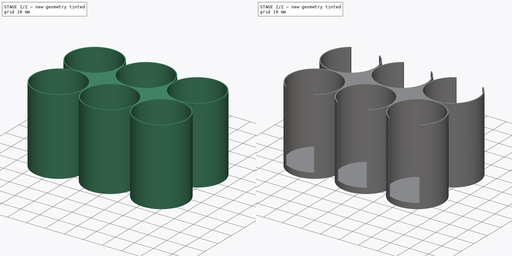
[diagram: build sequence overview — one tinted view per stage of 2, left to right]
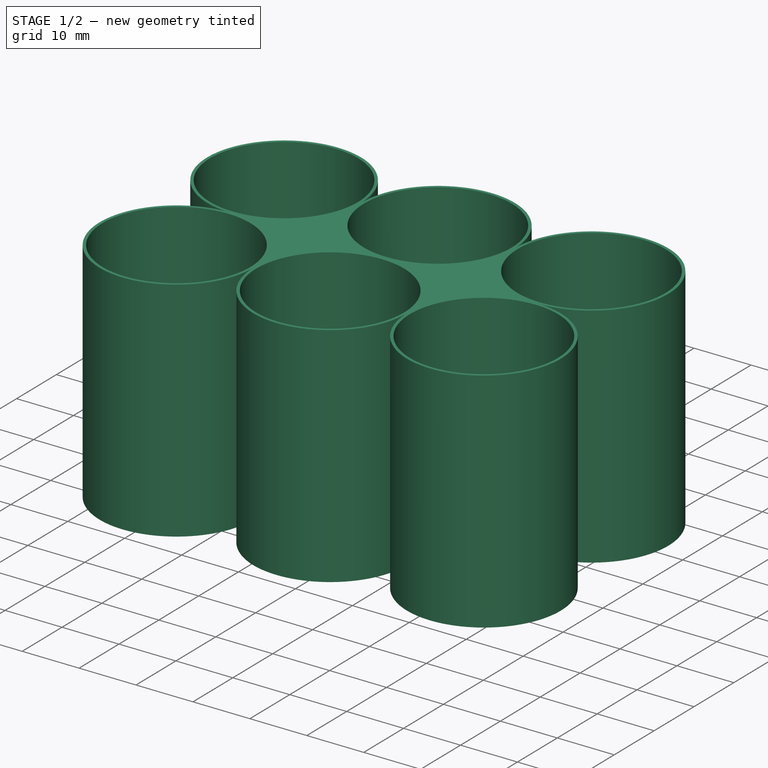
[diagram: stage 1 of 2 — iso view after this stage's code; geometry added in this stage tinted green]
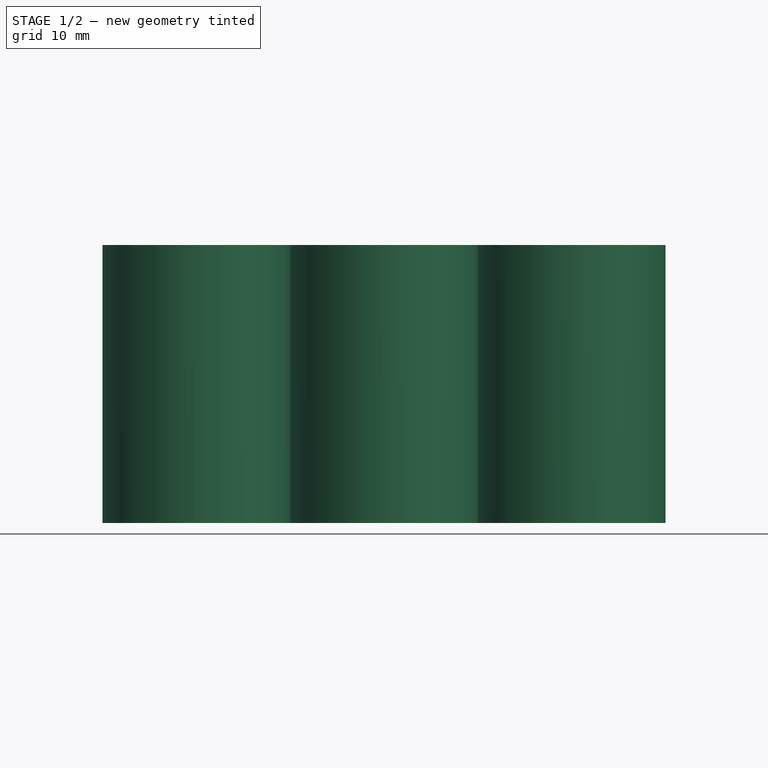
[diagram: stage 1 of 2 — front view after this stage's code; geometry added in this stage tinted green]
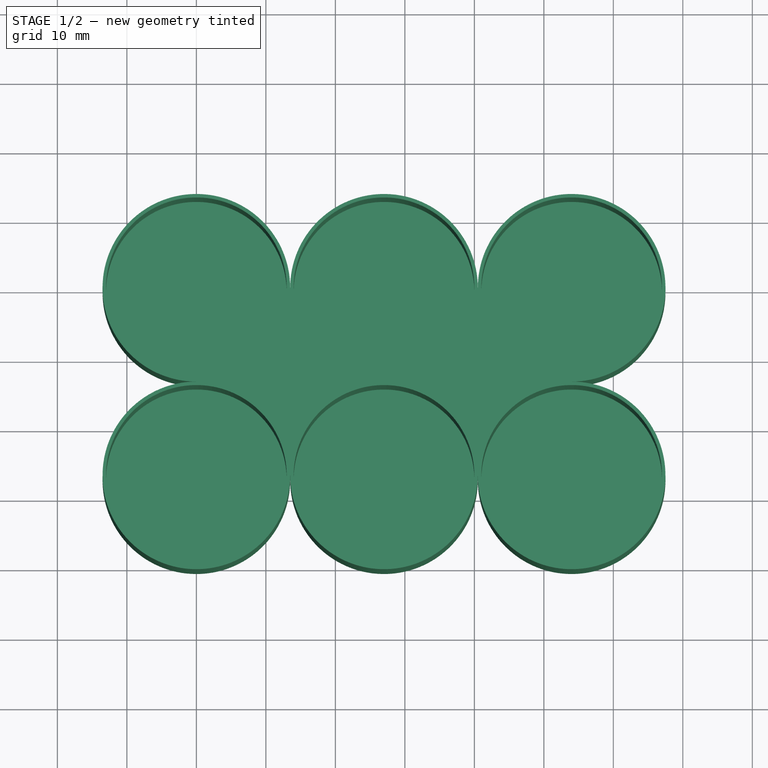
[diagram: stage 1 of 2 — top view after this stage's code; geometry added in this stage tinted green]
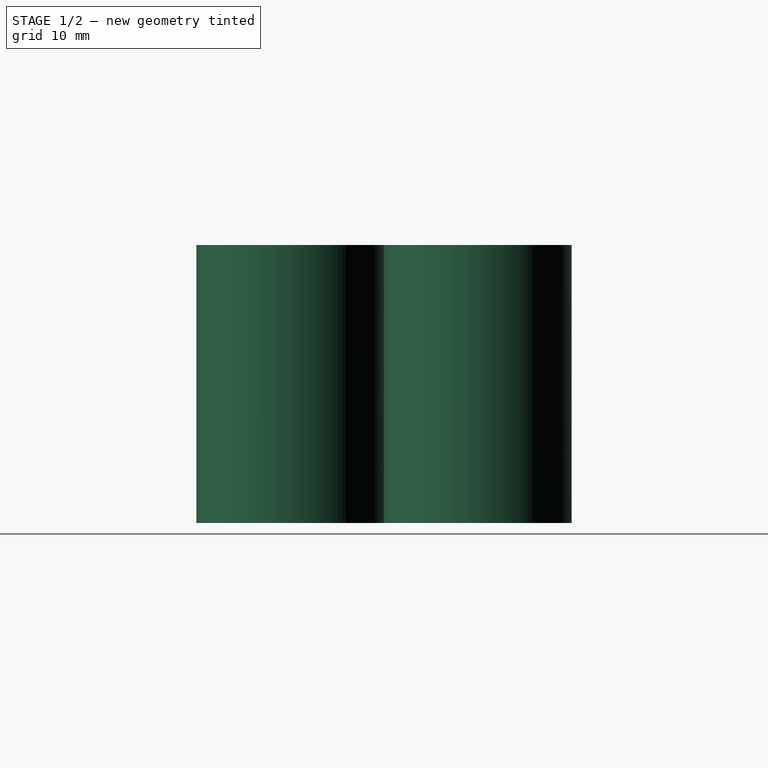
[diagram: stage 1 of 2 — right view after this stage's code; geometry added in this stage tinted green]
FCSTD DOCUMENT  (FreeCAD 0.20R29177 (Git))
Label: dropper_paint_v2
License: All rights reserved
LicenseURL: http://en.wikipedia.org/wiki/All_rights_reserved
objects: Sketcher::SketchObject×4, PartDesign::Pocket×3, PartDesign::Pad×1, PartDesign::Body×1
note: 13 computed .brp shape members not serialized (recipe doc carries the construction recipe); baked Part::Feature solids carry a one-line shape summary decoded from their .brp

FEATURE [Sketcher::SketchObject] Sketch
  FullyConstrained = true
  MapMode = 5
  Support = -> [XY_Plane]
  sketch-geometry (6):
    g0: ArcOfCircle CenterX=0 CenterY=0 CenterZ=0 NormalX=0 NormalY=0 NormalZ=1 AngleXU=0 Radius=13.5 StartAngle=6.28319 EndAngle=10.9956
    g1: ArcOfCircle CenterX=27 CenterY=0 CenterZ=0 NormalX=0 NormalY=0 NormalZ=1 AngleXU=0 Radius=13.5 StartAngle=6.28319 EndAngle=9.42478
    g2: ArcOfCircle CenterX=54 CenterY=0 CenterZ=0 NormalX=0 NormalY=0 NormalZ=1 AngleXU=0 Radius=13.5 StartAngle=4.71239 EndAngle=9.42478
    g3: ArcOfCircle CenterX=0 CenterY=-27 CenterZ=0 NormalX=0 NormalY=0 NormalZ=1 AngleXU=0 Radius=13.5 StartAngle=1.5708 EndAngle=6.28319
    g4: ArcOfCircle CenterX=27 CenterY=-27 CenterZ=0 NormalX=0 NormalY=0 NormalZ=1 AngleXU=0 Radius=13.5 StartAngle=3.14159 EndAngle=6.28319
    g5: ArcOfCircle CenterX=54 CenterY=-27 CenterZ=0 NormalX=0 NormalY=0 NormalZ=1 AngleXU=0 Radius=13.5 StartAngle=3.14159 EndAngle=7.85398
  constraints (22):
    c: Coincident(g0,g-1)
    c: Diameter(g0) = 27
    c: PointOnObject(g1,g-1)
    c: Diameter(g1) = 27
    c: PointOnObject(g2,g-1)
    c: Diameter(g2) = 27
    c: DistanceX(g0,g1) = 27
    c: DistanceX(g1,g2) = 27
    c: PointOnObject(g3,g-2)
    c: Diameter(g3) = 27
    c: Diameter(g4) = 27
    c: Diameter(g5) = 27
    c: DistanceX(g2,g5) = 0
    c: DistanceY(g5,g2) = 27
    c: DistanceY(g4,g1) = 27
    c: DistanceX(g4,g1) = 0
    c: Tangent(g3,g0) = 1.5708
    c: Coincident(g4,g3)
    c: Coincident(g1,g0)
    c: Coincident(g2,g1)
    c: Coincident(g5,g2)
    c: Coincident(g5,g4)
FEATURE [PartDesign::Pad] Pad
  Direction = (0,0,1)
  Length = 40
  Length2 = 10
  Profile = -> Sketch
  ReferenceAxis = -> Sketch [N_Axis]
  Type = 0
FEATURE [Sketcher::SketchObject] Sketch001
  FullyConstrained = true
  MapMode = 5
  Placement = pos=(0,0,40) rot=(0,0,1;0rad)
  Support = -> [Pad]
  sketch-geometry (6):
    g0: Circle CenterX=0 CenterY=0 CenterZ=0 NormalX=0 NormalY=0 NormalZ=1 AngleXU=0 Radius=13
    g1: Circle CenterX=0 CenterY=-27 CenterZ=0 NormalX=0 NormalY=0 NormalZ=1 AngleXU=0 Radius=13
    g2: Circle CenterX=27 CenterY=0 CenterZ=0 NormalX=0 NormalY=0 NormalZ=1 AngleXU=0 Radius=13
    g3: Circle CenterX=27 CenterY=-27 CenterZ=0 NormalX=0 NormalY=0 NormalZ=1 AngleXU=0 Radius=13
    g4: Circle CenterX=54 CenterY=0 CenterZ=0 NormalX=0 NormalY=0 NormalZ=1 AngleXU=0 Radius=13
    g5: Circle CenterX=54 CenterY=-27 CenterZ=0 NormalX=0 NormalY=0 NormalZ=1 AngleXU=0 Radius=13
  constraints (17):
    c: Coincident(g0,g-1)
    c: Diameter(g0) = 26
    c: PointOnObject(g1,g-2)
    c: Diameter(g1) = 26
    c: DistanceY(g1,g0) = 27
    c: PointOnObject(g2,g-1)
    c: Diameter(g2) = 26
    c: Diameter(g3) = 26
    c: PointOnObject(g4,g-1)
    c: Diameter(g4) = 26
    c: Diameter(g5) = 26
    c: DistanceY(g3,g1) = 0
    c: DistanceY(g3,g5) = 0
    c: DistanceX(g0,g2) = 27
    c: DistanceX(g2,g4) = 27
    c: DistanceX(g5,g4) = 0
    c: DistanceX(g3,g2) = 0
FEATURE [PartDesign::Pocket] Pocket
  BaseFeature = -> Pad
  Direction = (0,0,-1)
  Length = 37
  Length2 = 5
  Profile = -> Sketch001
  ReferenceAxis = -> Sketch001 [N_Axis]
  Type = 0
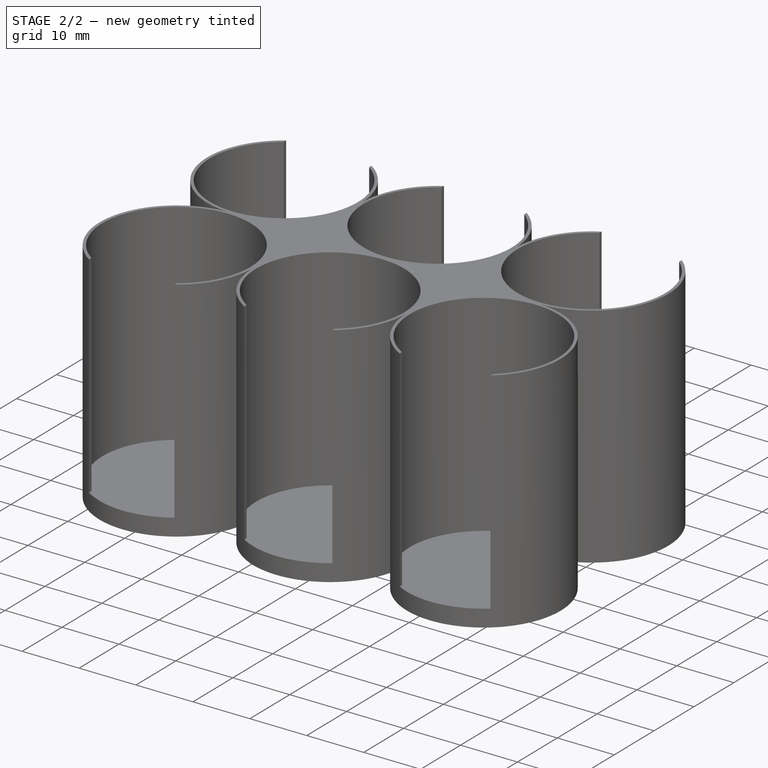
[diagram: stage 2 of 2 — iso view after this stage's code; geometry added in this stage tinted green]
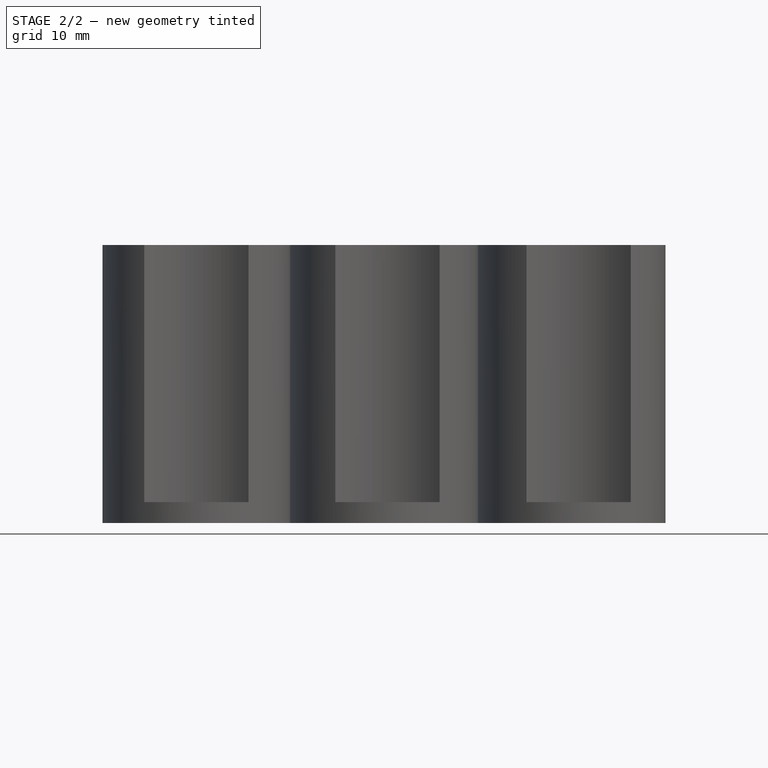
[diagram: stage 2 of 2 — front view after this stage's code; geometry added in this stage tinted green]
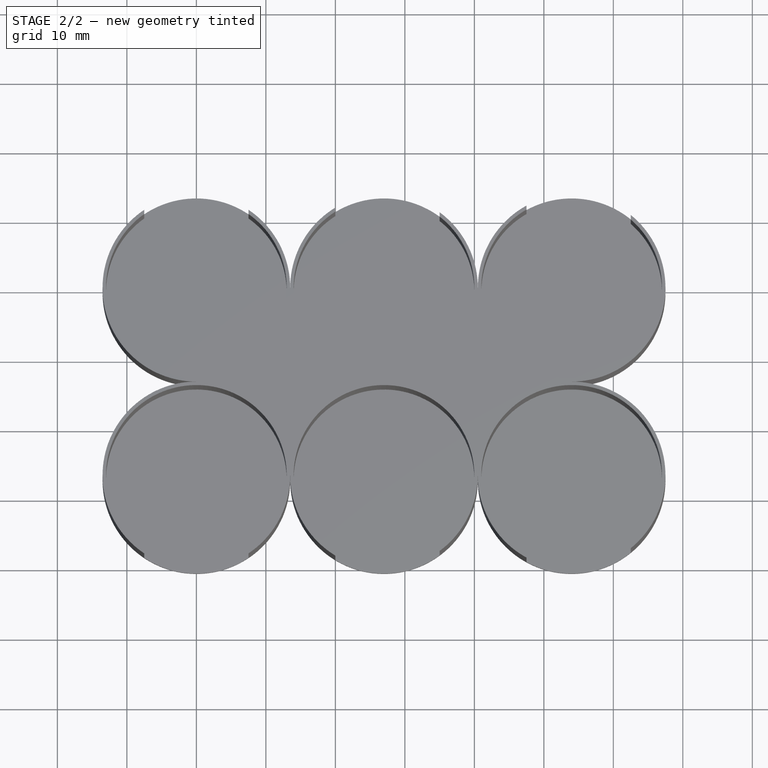
[diagram: stage 2 of 2 — top view after this stage's code; geometry added in this stage tinted green]
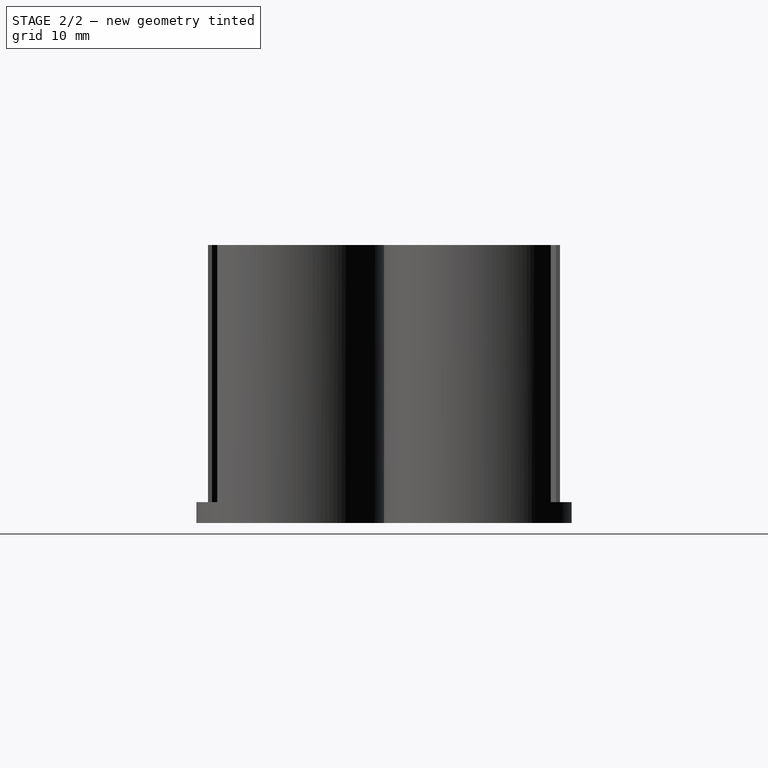
[diagram: stage 2 of 2 — right view after this stage's code; geometry added in this stage tinted green]
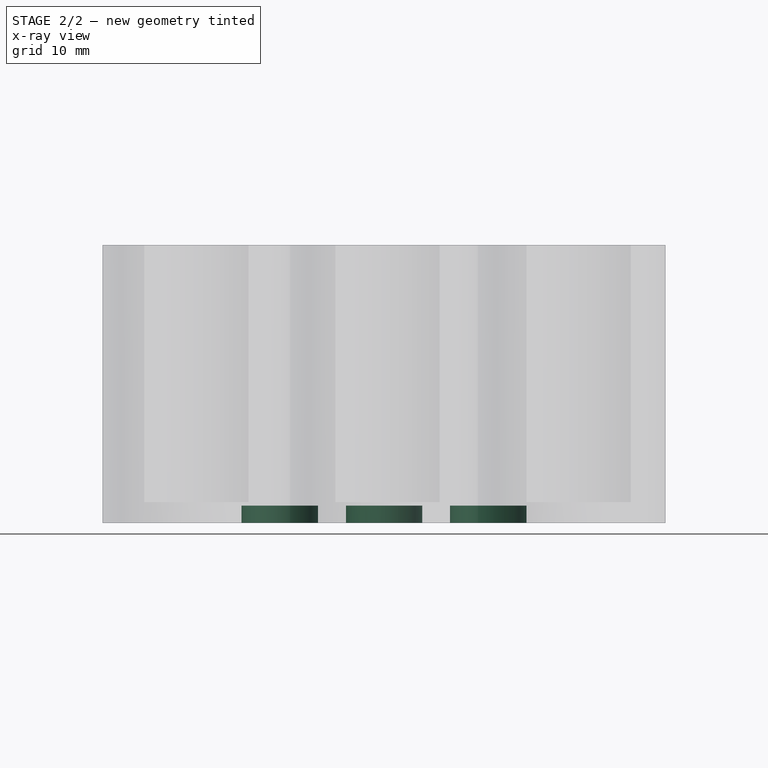
[diagram: stage 2 of 2 — x-ray composite at the front view; earlier geometry ghosted, this stage's added geometry solid]
FEATURE [Sketcher::SketchObject] Sketch002
  FullyConstrained = true
  MapMode = 5
  Placement = pos=(0,0,40) rot=(0,0,1;0rad)
  Support = -> [Pocket]
  sketch-geometry (24):
    g0: LineSegment StartX=-7.5 StartY=20 StartZ=0 EndX=7.5 EndY=20 EndZ=0
    g1: LineSegment StartX=7.5 StartY=20 StartZ=0 EndX=7.5 EndY=0 EndZ=0
    g2: LineSegment StartX=7.5 StartY=0 StartZ=0 EndX=-7.5 EndY=0 EndZ=0
    g3: LineSegment StartX=-7.5 StartY=0 StartZ=0 EndX=-7.5 EndY=20 EndZ=0
    g4: LineSegment StartX=-7.5 StartY=-25 StartZ=0 EndX=7.5 EndY=-25 EndZ=0
    g5: LineSegment StartX=7.5 StartY=-25 StartZ=0 EndX=7.5 EndY=-45 EndZ=0
    g6: LineSegment StartX=7.5 StartY=-45 StartZ=0 EndX=-7.5 EndY=-45 EndZ=0
    g7: LineSegment StartX=-7.5 StartY=-45 StartZ=0 EndX=-7.5 EndY=-25 EndZ=0
    g8: LineSegment StartX=20 StartY=20 StartZ=0 EndX=35 EndY=20 EndZ=0
    g9: LineSegment StartX=35 StartY=20 StartZ=0 EndX=35 EndY=0 EndZ=0
    g10: LineSegment StartX=35 StartY=0 StartZ=0 EndX=20 EndY=0 EndZ=0
    g11: LineSegment StartX=20 StartY=0 StartZ=0 EndX=20 EndY=20 EndZ=0
    g12: LineSegment StartX=47.5 StartY=20 StartZ=0 EndX=62.5 EndY=20 EndZ=0
    g13: LineSegment StartX=62.5 StartY=20 StartZ=0 EndX=62.5 EndY=0 EndZ=0
    g14: LineSegment StartX=62.5 StartY=0 StartZ=0 EndX=47.5 EndY=0 EndZ=0
    g15: LineSegment StartX=47.5 StartY=0 StartZ=0 EndX=47.5 EndY=20 EndZ=0
    g16: LineSegment StartX=20 StartY=-25 StartZ=0 EndX=35 EndY=-25 EndZ=0
    g17: LineSegment StartX=35 StartY=-25 StartZ=0 EndX=35 EndY=-45 EndZ=0
    g18: LineSegment StartX=35 StartY=-45 StartZ=0 EndX=20 EndY=-45 EndZ=0
    g19: LineSegment StartX=20 StartY=-45 StartZ=0 EndX=20 EndY=-25 EndZ=0
    g20: LineSegment StartX=47.5 StartY=-25 StartZ=0 EndX=62.5 EndY=-25 EndZ=0
    g21: LineSegment StartX=62.5 StartY=-25 StartZ=0 EndX=62.5 EndY=-45 EndZ=0
    g22: LineSegment StartX=62.5 StartY=-45 StartZ=0 EndX=47.5 EndY=-45 EndZ=0
    g23: LineSegment StartX=47.5 StartY=-45 StartZ=0 EndX=47.5 EndY=-25 EndZ=0
  constraints (72):
    c: Coincident(g0,g1)
    c: Coincident(g1,g2)
    c: Coincident(g2,g3)
    c: Coincident(g3,g0)
    c: Horizontal(g0)
    c: Horizontal(g2)
    c: Vertical(g1)
    c: Vertical(g3)
    c: PointOnObject(g1,g-1)
    c: DistanceX(g0,g0) = 15
    c: DistanceX(g2,g-1) = 7.5
    c: DistanceY(g1,g1) = 20
    c: Coincident(g4,g5)
    c: Coincident(g5,g6)
    c: Coincident(g6,g7)
    c: Coincident(g7,g4)
    c: Horizontal(g4)
    c: Horizontal(g6)
    c: Vertical(g5)
    c: Vertical(g7)
    c: DistanceX(g4,g4) = 15
    c: DistanceY(g5,g5) = 20
    c: DistanceX(g2,g4) = 0
    c: DistanceY(g4,g2) = 25
    c: Coincident(g8,g9)
    c: Coincident(g9,g10)
    c: Coincident(g10,g11)
    c: Coincident(g11,g8)
    c: Horizontal(g8)
    c: Horizontal(g10)
    c: Vertical(g9)
    c: Vertical(g11)
    c: PointOnObject(g9,g-1)
    c: Coincident(g12,g13)
    c: Coincident(g13,g14)
    c: Coincident(g14,g15)
    c: Coincident(g15,g12)
    c: Horizontal(g12)
    c: Horizontal(g14)
    c: Vertical(g13)
    c: Vertical(g15)
    c: PointOnObject(g13,g-1)
    c: Coincident(g16,g17)
    c: Coincident(g17,g18)
    c: Coincident(g18,g19)
    c: Coincident(g19,g16)
    c: Horizontal(g16)
    c: Horizontal(g18)
    c: Vertical(g17)
    c: Vertical(g19)
    c: Coincident(g20,g21)
    c: Coincident(g21,g22)
    c: Coincident(g22,g23)
    c: Coincident(g23,g20)
    c: Horizontal(g20)
    c: Horizontal(g22)
    c: Vertical(g21)
    c: Vertical(g23)
    c: DistanceX(g8,g8) = 15
    c: DistanceX(g16,g16) = 15
    c: DistanceX(g12,g12) = 15
    c: DistanceX(g20,g20) = 15
    c: DistanceY(g9,g9) = 20
    c: DistanceY(g13,g13) = 20
    c: DistanceY(g17,g17) = 20
    c: DistanceY(g21,g21) = 20
    c: DistanceY(g16,g4) = 0
    c: DistanceY(g16,g20) = 0
    c: DistanceX(g1,g10) = 12.5
    c: DistanceX(g9,g14) = 12.5
    c: DistanceX(g4,g16) = 12.5
    c: DistanceX(g16,g20) = 12.5
FEATURE [PartDesign::Pocket] Pocket001
  BaseFeature = -> Pocket
  Direction = (0,0,-1)
  Length = 37
  Length2 = 5
  Profile = -> Sketch002
  ReferenceAxis = -> Sketch002 [N_Axis]
  Type = 0
FEATURE [Sketcher::SketchObject] Sketch003
  FullyConstrained = true
  MapMode = 5
  Placement = pos=(0,0,0) rot=(1,0,0;3.14159rad)
  Support = -> [Pocket001]
  sketch-geometry (3):
    g0: Circle CenterX=12 CenterY=13.5 CenterZ=0 NormalX=0 NormalY=0 NormalZ=1 AngleXU=0 Radius=5.5
    g1: Circle CenterX=27 CenterY=13.5 CenterZ=0 NormalX=0 NormalY=0 NormalZ=1 AngleXU=0 Radius=5.5
    g2: Circle CenterX=42 CenterY=13.5 CenterZ=0 NormalX=0 NormalY=0 NormalZ=1 AngleXU=0 Radius=5.5
  constraints (9):
    c: Diameter(g0) = 11
    c: Diameter(g1) = 11
    c: Diameter(g2) = 11
    c: DistanceX(g-1,g0) = 12
    c: DistanceX(g0,g1) = 15
    c: DistanceX(g1,g2) = 15
    c: DistanceY(g-1,g0) = 13.5
    c: DistanceY(g1,g0) = 0
    c: DistanceY(g1,g2) = 0
FEATURE [PartDesign::Pocket] Pocket002
  BaseFeature = -> Pocket001
  Direction = (0,0,1)
  Length = 2.5
  Length2 = 5
  Profile = -> Sketch003
  ReferenceAxis = -> Sketch003 [N_Axis]
  Type = 0
FEATURE [PartDesign::Body] Body
  Group = -> [Sketch,Pad,Sketch001,Pocket,Sketch002,Pocket001,Sketch003,Pocket002]
  Origin = -> Origin
  Tip = -> Pocket002
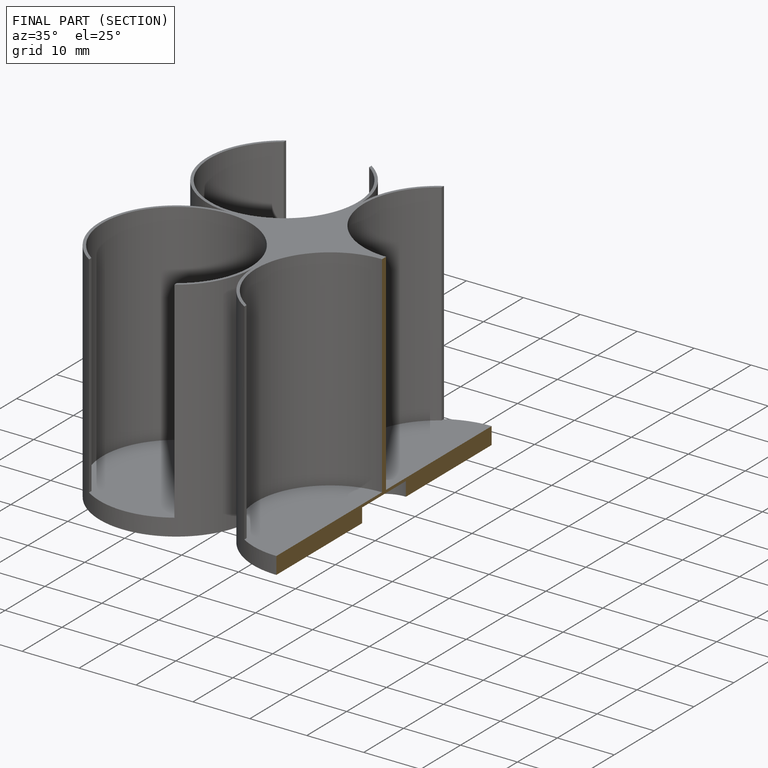
[diagram: finished part — half-section view (interior)]
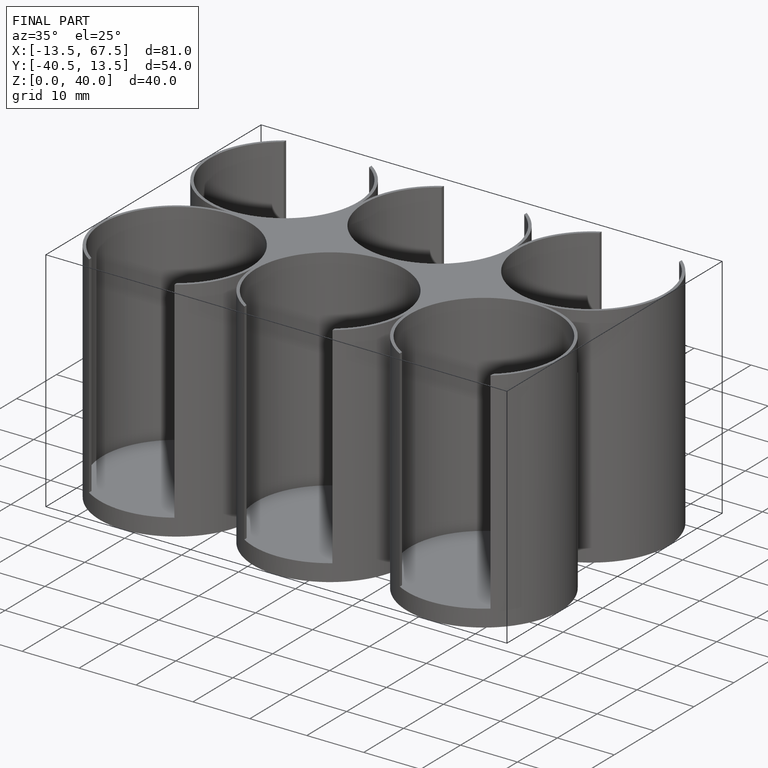
[diagram: finished part — iso view with bounding-box wireframe]
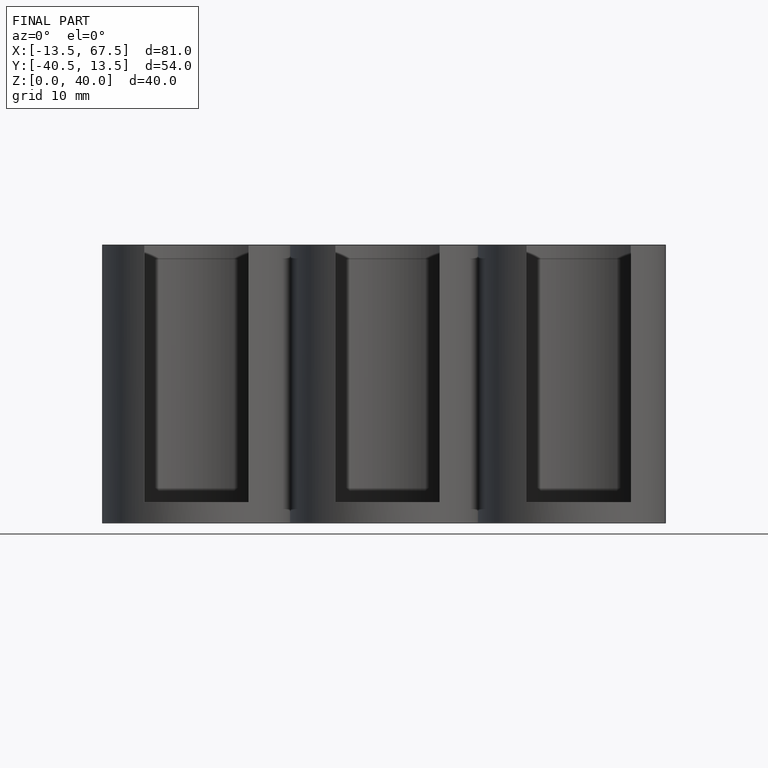
[diagram: finished part — front view with bounding-box wireframe]
